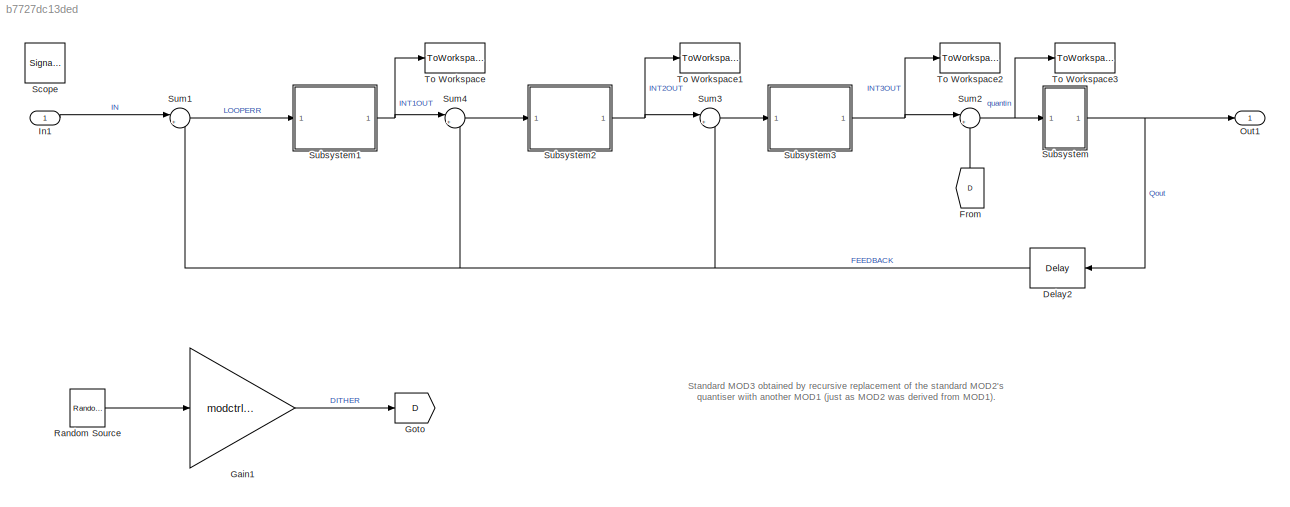
MODEL slx_b7727dc13ded
KIND model
BLOCK [Reference] Delay2  REF=dspsigops/Delay
  InputProcessing = Inherited (this choice will be removed - see release notes)
  Ports = [1, 1]
  SourceBlock = dspsigops/Delay
  SourceType = Delay
  UserDataPersistent = on
  delay = 1
  dif_ic_for_ch = off
  dif_ic_for_dly = off
  dly_unit = Samples
  ic = 0
  ic_detail = off
  reset_popup = None
BLOCK [From] From
  GotoTag = D
BLOCK [Gain] Gain1
  AttributesFormatString = Dither level adjust
  Gain = modctrl.dgain1
  OutDataTypeStr = Inherit: Inherit via internal rule
  ParamDataTypeStr = Inherit: Inherit via internal rule
  SaturateOnIntegerOverflow = off
BLOCK [Goto] Goto
  GotoTag = D
BLOCK [Inport] In1
  IconDisplay = Port number
BLOCK [Outport] Out1
  IconDisplay = Port number
BLOCK [Reference] Random Source  REF=dspsrcs4/Random
Source
  AttributesFormatString = Dither source
  CltLength = 12
  DataType = Double
  IsInherit = off
  MaxVal = 1
  MeanVal = 0
  MinVal = -1
  NormMethod = Ziggurat
  OutComplex = Real
  Ports = [0, 1]
  RepMode = Not repeatable
  SampFrame = 1
  SampMode = Discrete
  SampTime = 1/Fs
  SourceBlock = dspsrcs4/Random\nSource
  SourceType = Random Source
  SrcType = Uniform
  UserDataPersistent = on
  VarVal = 1
  rawSeed = 1
BLOCK [SignalViewerScope] Scope
  IOType = viewer
  LegendLocations = 0.7791     0.91401     0.17295    0.036284\n 0.7791     0.68179     0.17295    0.036284\n 0.7791     0.45102     0.17295    0.036284\n0.81844      0.2188     0.13361    0.036284
  MaxDataPoints = 200000
  NumInputPorts = 4
  Ports = []
  RefreshTime = 0.035000
  ShowDataMarkers = off
  ShowLegends = on
  YMax = 75000~3e+09~6e+13~5
  YMin = -175000~-5e+08~-2e+13~-5
  ZoomMode = xonly
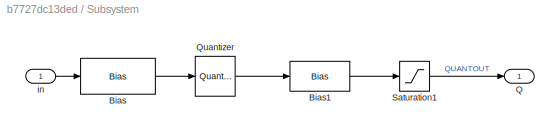
BLOCK [SubSystem] Subsystem
  AttributesFormatString = 1-bit quantiser
  FunctionWithSeparateData = off
  MaskHideContents = off
  MinAlgLoopOccurrences = off
  Opaque = off
  Ports = [1, 1]
  PropExecContextOutsideSubsystem = off
  RTWSystemCode = Auto
  RequestExecContextInheritance = off
BLOCK [Bias] Subsystem/Bias
  AttributesFormatString = Need offset to give\nMID-RISE quantiser
  Bias = 1/15
  SaturateOnIntegerOverflow = off
BLOCK [Bias] Subsystem/Bias1
  Bias = -1/15
  SaturateOnIntegerOverflow = off
BLOCK [Outport] Subsystem/Q
  IconDisplay = Port number
BLOCK [Quantizer] Subsystem/Quantizer
  AttributesFormatString = ...
  LinearizeAsGain = off
  QuantizationInterval = 2/15
BLOCK [Saturate] Subsystem/Saturation1
  AttributesFormatString = Limit quantiser\noutput to +/-1
  InputPortMap = u0
  LowerLimit = -1
  Ports = [1, 1]
  UpperLimit = 1
BLOCK [Inport] Subsystem/in
  IconDisplay = Port number
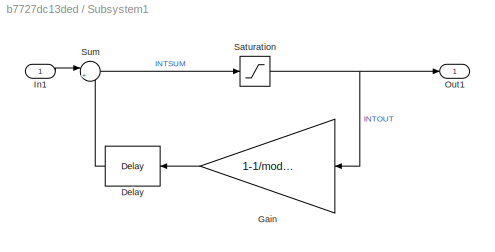
BLOCK [SubSystem] Subsystem1
  AttributesFormatString = Leaky delayless integrator
  FunctionWithSeparateData = off
  MaskHideContents = off
  MinAlgLoopOccurrences = off
  Opaque = off
  Ports = [1, 1]
  PropExecContextOutsideSubsystem = off
  RTWSystemCode = Auto
  RequestExecContextInheritance = off
BLOCK [Reference] Subsystem1/Delay  REF=dspsigops/Delay
  InputProcessing = Inherited (this choice will be removed - see release notes)
  Ports = [1, 1]
  SourceBlock = dspsigops/Delay
  SourceType = Delay
  UserDataPersistent = on
  delay = 1
  dif_ic_for_ch = off
  dif_ic_for_dly = off
  dly_unit = Samples
  ic = 0
  ic_detail = off
  reset_popup = None
BLOCK [Gain] Subsystem1/Gain
  AttributesFormatString = Integrator leakage
  Gain = 1-1/modctrl.igain1
  OutDataTypeStr = Inherit: Inherit via internal rule
  ParamDataTypeStr = Inherit: Inherit via internal rule
  SaturateOnIntegerOverflow = off
BLOCK [Inport] Subsystem1/In1
  IconDisplay = Port number
BLOCK [Outport] Subsystem1/Out1
  IconDisplay = Port number
BLOCK [Saturate] Subsystem1/Saturation
  InputPortMap = u0
  LowerLimit = -(modctrl.isat1)
  Ports = [1, 1]
  UpperLimit = modctrl.isat1
BLOCK [Sum] Subsystem1/Sum
  AttributesFormatString = Integrator summer
  IconShape = round
  InputSameDT = off
  Inputs = |++
  OutDataTypeStr = Inherit: Inherit via internal rule
  Ports = [2, 1]
  SaturateOnIntegerOverflow = off
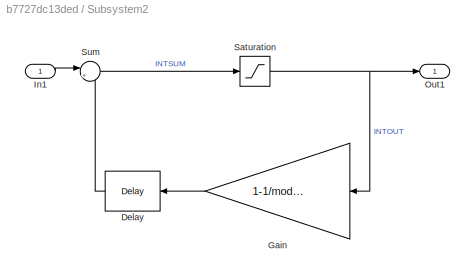
BLOCK [SubSystem] Subsystem2
  AttributesFormatString = Leaky delayless integrator
  FunctionWithSeparateData = off
  MaskHideContents = off
  MinAlgLoopOccurrences = off
  Opaque = off
  Ports = [1, 1]
  PropExecContextOutsideSubsystem = off
  RTWSystemCode = Auto
  RequestExecContextInheritance = off
BLOCK [Reference] Subsystem2/Delay  REF=dspsigops/Delay
  InputProcessing = Inherited (this choice will be removed - see release notes)
  Ports = [1, 1]
  SourceBlock = dspsigops/Delay
  SourceType = Delay
  UserDataPersistent = on
  delay = 1
  dif_ic_for_ch = off
  dif_ic_for_dly = off
  dly_unit = Samples
  ic = 0
  ic_detail = off
  reset_popup = None
BLOCK [Gain] Subsystem2/Gain
  AttributesFormatString = Integrator leakage
  Gain = 1-1/modctrl.igain2
  OutDataTypeStr = Inherit: Inherit via internal rule
  ParamDataTypeStr = Inherit: Inherit via internal rule
  SaturateOnIntegerOverflow = off
BLOCK [Inport] Subsystem2/In1
  IconDisplay = Port number
BLOCK [Outport] Subsystem2/Out1
  IconDisplay = Port number
BLOCK [Saturate] Subsystem2/Saturation
  InputPortMap = u0
  LowerLimit = -(modctrl.isat2)
  Ports = [1, 1]
  UpperLimit = modctrl.isat2
BLOCK [Sum] Subsystem2/Sum
  AttributesFormatString = Integrator summer
  IconShape = round
  InputSameDT = off
  Inputs = |++
  OutDataTypeStr = Inherit: Inherit via internal rule
  Ports = [2, 1]
  SaturateOnIntegerOverflow = off
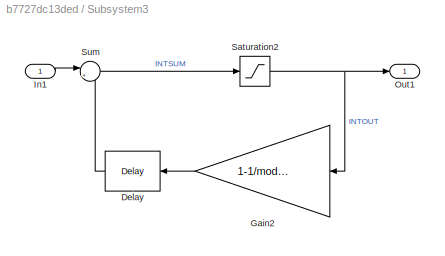
BLOCK [SubSystem] Subsystem3
  AttributesFormatString = Leaky delayless integrator
  FunctionWithSeparateData = off
  MaskHideContents = off
  MinAlgLoopOccurrences = off
  Opaque = off
  Ports = [1, 1]
  PropExecContextOutsideSubsystem = off
  RTWSystemCode = Auto
  RequestExecContextInheritance = off
BLOCK [Reference] Subsystem3/Delay  REF=dspsigops/Delay
  InputProcessing = Inherited (this choice will be removed - see release notes)
  Ports = [1, 1]
  SourceBlock = dspsigops/Delay
  SourceType = Delay
  UserDataPersistent = on
  delay = 1
  dif_ic_for_ch = off
  dif_ic_for_dly = off
  dly_unit = Samples
  ic = 0
  ic_detail = off
  reset_popup = None
BLOCK [Gain] Subsystem3/Gain2
  AttributesFormatString = Integrator leakage
  Gain = 1-1/modctrl.igain3
  OutDataTypeStr = Inherit: Inherit via internal rule
  ParamDataTypeStr = Inherit: Inherit via internal rule
  SaturateOnIntegerOverflow = off
BLOCK [Inport] Subsystem3/In1
  IconDisplay = Port number
BLOCK [Outport] Subsystem3/Out1
  IconDisplay = Port number
BLOCK [Saturate] Subsystem3/Saturation2
  InputPortMap = u0
  LowerLimit = -(modctrl.isat3)
  Ports = [1, 1]
  UpperLimit = modctrl.isat3
BLOCK [Sum] Subsystem3/Sum
  AttributesFormatString = Integrator summer
  IconShape = round
  InputSameDT = off
  Inputs = |++
  OutDataTypeStr = Inherit: Inherit via internal rule
  Ports = [2, 1]
  SaturateOnIntegerOverflow = off
BLOCK [Sum] Sum1
  AttributesFormatString = Modulator input\nloop servo error (input - fbk)
  IconShape = round
  InputSameDT = off
  Inputs = |+-
  OutDataTypeStr = Inherit: Inherit via internal rule
  Ports = [2, 1]
  SaturateOnIntegerOverflow = off
BLOCK [Sum] Sum2
  IconShape = round
  InputSameDT = off
  Inputs = |++
  OutDataTypeStr = Inherit: Inherit via internal rule
  Ports = [2, 1]
  SaturateOnIntegerOverflow = off
BLOCK [Sum] Sum3
  IconShape = round
  InputSameDT = off
  Inputs = |+-
  OutDataTypeStr = Inherit: Inherit via internal rule
  Ports = [2, 1]
  SaturateOnIntegerOverflow = off
BLOCK [Sum] Sum4
  IconShape = round
  InputSameDT = off
  Inputs = |+-
  OutDataTypeStr = Inherit: Inherit via internal rule
  Ports = [2, 1]
  SaturateOnIntegerOverflow = off
BLOCK [ToWorkspace] To Workspace
  MaxDataPoints = inf
  Ports = [1]
  SampleTime = -1
  VariableName = INT1OUT
BLOCK [ToWorkspace] To Workspace1
  MaxDataPoints = inf
  Ports = [1]
  SampleTime = -1
  VariableName = INT2OUT
BLOCK [ToWorkspace] To Workspace2
  MaxDataPoints = inf
  Ports = [1]
  SampleTime = -1
  VariableName = INT3OUT
BLOCK [ToWorkspace] To Workspace3
  MaxDataPoints = inf
  Ports = [1]
  SampleTime = -1
  VariableName = Qin
ANNOTATION (root): Standard MOD3 obtained by recursive replacement of the standard MOD2's quantiser wiith another MOD1 (just as MOD2 was derived from MOD1).
NET Delay2:1 -> Sum1:2, Sum3:2, Sum4:2
LINE From:1 -> Sum2:2
LINE Gain1:1 -> Goto:1
LINE In1:1 -> Sum1:1
LINE Random Source:1 -> Gain1:1
LINE Subsystem/Bias1:1 -> Subsystem/Saturation1:1
LINE Subsystem/Bias:1 -> Subsystem/Quantizer:1
LINE Subsystem/Quantizer:1 -> Subsystem/Bias1:1
LINE Subsystem/Saturation1:1 -> Subsystem/Q:1
LINE Subsystem/in:1 -> Subsystem/Bias:1
LINE Subsystem1/Delay:1 -> Subsystem1/Sum:2
LINE Subsystem1/Gain:1 -> Subsystem1/Delay:1
LINE Subsystem1/In1:1 -> Subsystem1/Sum:1
NET Subsystem1/Saturation:1 -> Subsystem1/Gain:1, Subsystem1/Out1:1
LINE Subsystem1/Sum:1 -> Subsystem1/Saturation:1
NET Subsystem1:1 -> Sum4:1, To Workspace:1
LINE Subsystem2/Delay:1 -> Subsystem2/Sum:2
LINE Subsystem2/Gain:1 -> Subsystem2/Delay:1
LINE Subsystem2/In1:1 -> Subsystem2/Sum:1
NET Subsystem2/Saturation:1 -> Subsystem2/Gain:1, Subsystem2/Out1:1
LINE Subsystem2/Sum:1 -> Subsystem2/Saturation:1
NET Subsystem2:1 -> Sum3:1, To Workspace1:1
LINE Subsystem3/Delay:1 -> Subsystem3/Sum:2
LINE Subsystem3/Gain2:1 -> Subsystem3/Delay:1
LINE Subsystem3/In1:1 -> Subsystem3/Sum:1
NET Subsystem3/Saturation2:1 -> Subsystem3/Gain2:1, Subsystem3/Out1:1
LINE Subsystem3/Sum:1 -> Subsystem3/Saturation2:1
NET Subsystem3:1 -> Sum2:1, To Workspace2:1
NET Subsystem:1 -> Delay2:1, Out1:1
LINE Sum1:1 -> Subsystem1:1
NET Sum2:1 -> Subsystem:1, To Workspace3:1
LINE Sum3:1 -> Subsystem3:1
LINE Sum4:1 -> Subsystem2:1
note: NET lines group one-source signal fan-out (src -> all destinations, sorted); 1:1 wires keep LINE
